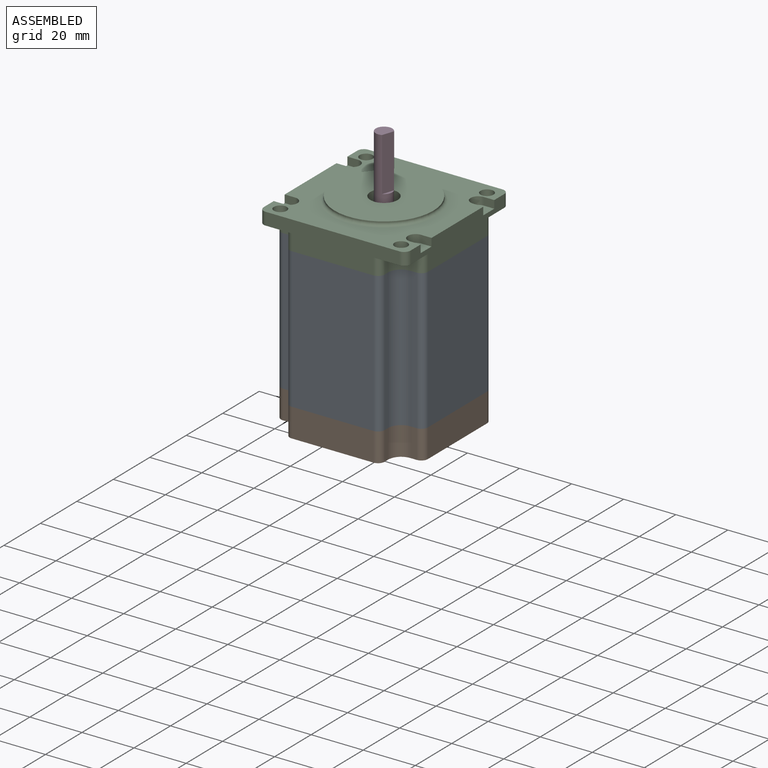
[diagram: assembled view]
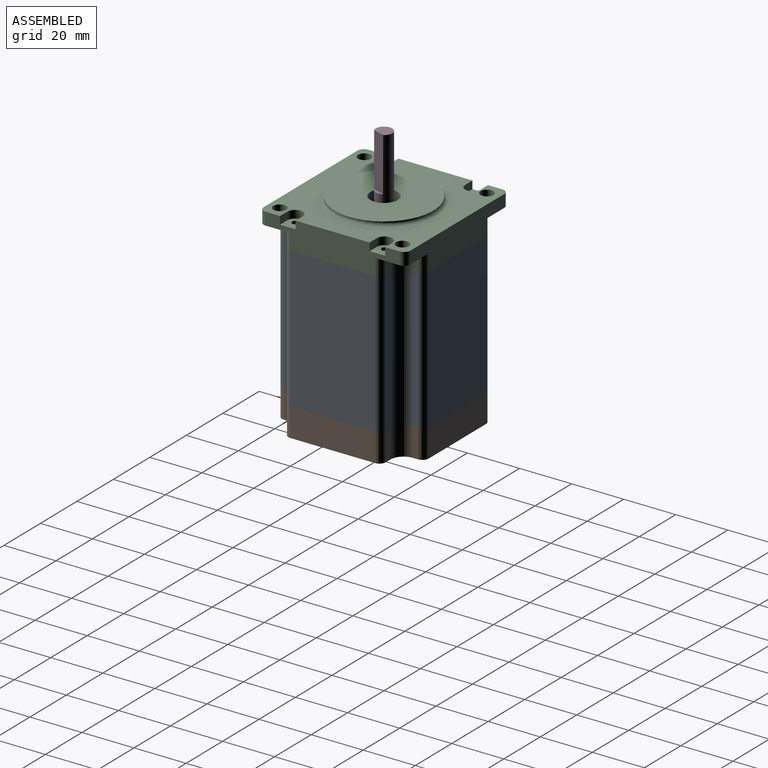
[diagram: assembled view, second angle]
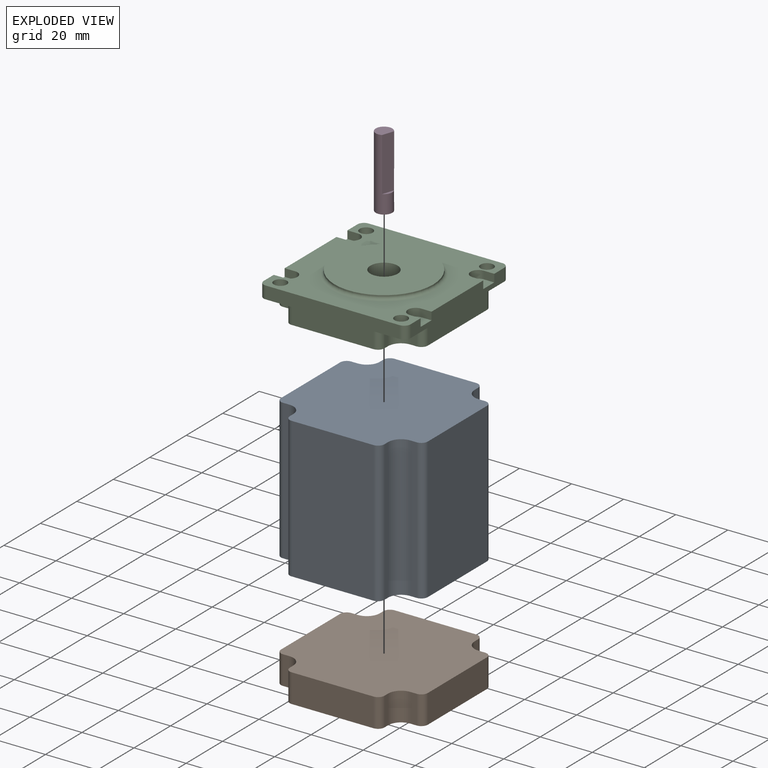
[diagram: exploded view]
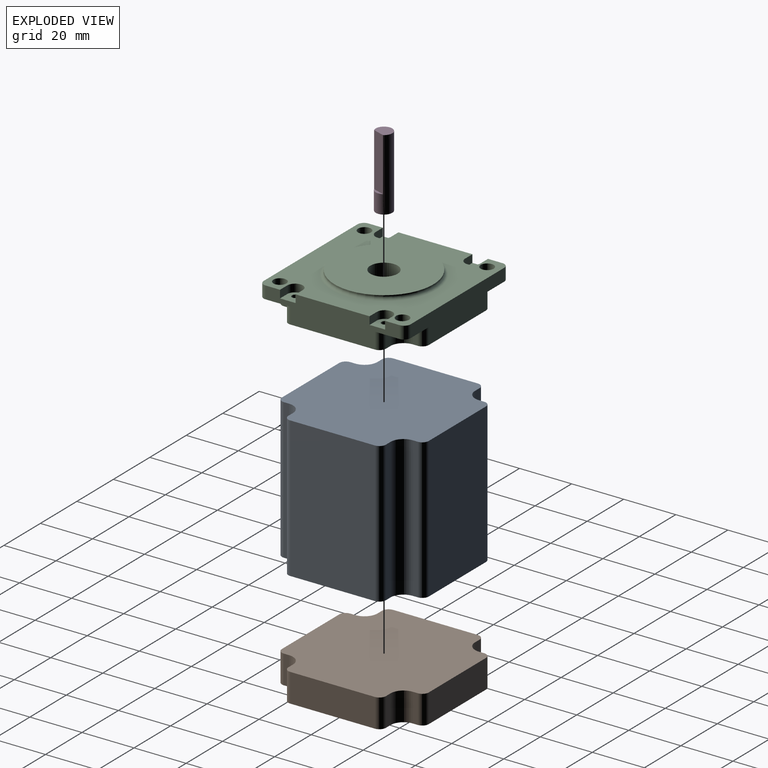
[diagram: exploded view, second angle]
ASSEMBLY  parts=4 mates=3
PART A: 26 faces, bbox 56.4x56.4x54 mm
  f0: plane 56.4x56.4mm, normal (0,0,1), area 2813mm2, adj f1,f2,f3,f4,f5,f6,f7,f8
  f1: cylinder r=2.5mm len=54mm, axis (0,0,-1), area 212.1mm2, adj f0,f2,f22,f24
  f2: plane 54x1.97mm, normal (1,0,0), area 106.2mm2, adj f0,f1,f3,f22
  f3: cylinder r=5mm len=54mm, axis (0,0,-1), area 424.1mm2, adj f0,f2,f4,f22
  f4: plane 54x2.5mm, normal (0,-1,0), area 135mm2, adj f0,f3,f5,f22
  f5: cylinder r=2.5mm len=54mm, axis (0,0,-1), area 212.1mm2, adj f0,f4,f6,f22
  f6: plane 54x32.47mm, normal (1,0,0), area 1753.1mm2, adj f0,f5,f7,f22
  f7: cylinder r=2.5mm len=54mm, axis (0,0,-1), area 212.1mm2, adj f0,f6,f8,f22
  f8: plane 54x2.5mm, normal (0,1,0), area 135mm2, adj f0,f7,f9,f22
  f9: cylinder r=5mm len=54mm, axis (0,0,-1), area 424.1mm2, adj f0,f8,f10,f22
  f10: plane 54x1.97mm, normal (1,0,0), area 106.2mm2, adj f0,f9,f11,f22
  f11: cylinder r=2.5mm len=54mm, axis (0,0,-1), area 212.1mm2, adj f0,f10,f12,f22
  f12: plane 54x31.4mm, normal (0,1,0), area 1695.6mm2, adj f0,f11,f13,f22
  f13: cylinder r=2.5mm len=54mm, axis (0,0,-1), area 212.1mm2, adj f0,f12,f14,f22
  f14: plane 54x1.97mm, normal (-1,0,0), area 106.2mm2, adj f0,f13,f15,f22
  f15: cylinder r=5mm len=54mm, axis (0,0,-1), area 424.1mm2, adj f0,f14,f16,f22
  f16: plane 54x2.5mm, normal (0,1,0), area 135mm2, adj f0,f15,f17,f22
  f17: cylinder r=2.5mm len=54mm, axis (0,0,-1), area 212.1mm2, adj f0,f16,f18,f22
  f18: plane 54x32.47mm, normal (-1,0,0), area 1753.1mm2, adj f0,f17,f19,f22
  f19: cylinder r=2.5mm len=54mm, axis (0,0,-1), area 212.1mm2, adj f0,f18,f20,f22
  f20: plane 54x2.5mm, normal (0,-1,0), area 135mm2, adj f0,f19,f21,f22
  f21: cylinder r=5mm len=54mm, axis (0,0,-1), area 424.1mm2, adj f0,f20,f22,f23
  f22: plane 56.4x56.4mm, normal (0,0,-1), area 2813mm2, adj f1,f2,f3,f4,f5,f6,f7,f8
  f23: plane 54x1.97mm, normal (-1,0,0), area 106.2mm2, adj f0,f21,f22,f25
  f24: plane 54x31.4mm, normal (0,-1,0), area 1695.6mm2, adj f0,f1,f22,f25
  f25: cylinder r=2.5mm len=54mm, axis (0,0,-1), area 212.1mm2, adj f0,f22,f23,f24
PART B: 26 faces, bbox 56.4x56.4x11 mm
  f0: plane 31.4x11mm, normal (0,-1,0), area 345.4mm2, adj f1,f23,f24,f25
  f1: cylinder r=2.5mm len=11mm, axis (0,0,-1), area 43.2mm2, adj f0,f2,f24,f25
  f2: plane 11x1.97mm, normal (1,0,0), area 21.6mm2, adj f1,f3,f24,f25
  f3: cylinder r=5mm len=11mm, axis (0,0,-1), area 86.4mm2, adj f2,f4,f24,f25
  f4: plane 11x2.5mm, normal (0,-1,0), area 27.5mm2, adj f3,f5,f24,f25
  f5: cylinder r=2.5mm len=11mm, axis (0,0,-1), area 43.2mm2, adj f4,f6,f24,f25
  f6: plane 32.47x11mm, normal (1,0,0), area 357.1mm2, adj f5,f7,f24,f25
  f7: cylinder r=2.5mm len=11mm, axis (0,0,-1), area 43.2mm2, adj f6,f8,f24,f25
  f8: plane 11x2.5mm, normal (0,1,0), area 27.5mm2, adj f7,f9,f24,f25
  f9: cylinder r=5mm len=11mm, axis (0,0,-1), area 86.4mm2, adj f8,f10,f24,f25
  f10: plane 11x1.97mm, normal (1,0,0), area 21.6mm2, adj f9,f11,f24,f25
  f11: cylinder r=2.5mm len=11mm, axis (0,0,-1), area 43.2mm2, adj f10,f12,f24,f25
  f12: plane 31.4x11mm, normal (0,1,0), area 345.4mm2, adj f11,f13,f24,f25
  f13: cylinder r=2.5mm len=11mm, axis (0,0,-1), area 43.2mm2, adj f12,f14,f24,f25
  f14: plane 11x1.97mm, normal (-1,0,0), area 21.6mm2, adj f13,f15,f24,f25
  f15: cylinder r=5mm len=11mm, axis (0,0,-1), area 86.4mm2, adj f14,f16,f24,f25
  f16: plane 11x2.5mm, normal (0,1,0), area 27.5mm2, adj f15,f17,f24,f25
  f17: cylinder r=2.5mm len=11mm, axis (0,0,-1), area 43.2mm2, adj f16,f18,f24,f25
  f18: plane 32.47x11mm, normal (-1,0,0), area 357.1mm2, adj f17,f19,f24,f25
  f19: cylinder r=2.5mm len=11mm, axis (0,0,-1), area 43.2mm2, adj f18,f20,f24,f25
  f20: plane 11x2.5mm, normal (0,-1,0), area 27.5mm2, adj f19,f21,f24,f25
  f21: cylinder r=5mm len=11mm, axis (0,0,-1), area 86.4mm2, adj f20,f22,f24,f25
  f22: plane 11x1.97mm, normal (-1,0,0), area 21.6mm2, adj f21,f23,f24,f25
  f23: cylinder r=2.5mm len=11mm, axis (0,0,-1), area 43.2mm2, adj f0,f22,f24,f25
  f24: plane 56.4x56.4mm, normal (0,0,1), area 2813mm2, adj f0,f1,f2,f3,f4,f5,f6,f7
  f25: plane 56.4x56.4mm, normal (0,0,-1), area 2813mm2, adj f0,f1,f2,f3,f4,f5,f6,f7
PART C: 67 faces, bbox 56.4x56.4x12.6 mm
  f0: plane 51.4x11mm, normal (1,0,0), area 412mm2, adj f1,f2,f5,f6,f12,f31,f32,f37
  f1: plane 12.5x11.97mm, normal (0,0,-1), area 71mm2, adj f0,f11,f12,f14,f32,f33,f34,f35
  f2: plane 12.5x11.97mm, normal (0,0,-1), area 71mm2, adj f0,f6,f7,f15,f27,f28,f29,f30
  f3: plane 12.5x11.97mm, normal (0,0,-1), area 71mm2, adj f7,f8,f9,f13,f22,f23,f24,f25
  f4: plane 12.5x11.97mm, normal (0,0,-1), area 71mm2, adj f9,f10,f11,f16,f17,f18,f19,f20
  f5: plane 56.4x56.4mm, normal (0,0,1), area 1662.6mm2, adj f0,f6,f7,f8,f9,f10,f11,f12
  f6: cylinder r=2.5mm len=4.8mm, axis (0,0,1), area 18.8mm2, adj f0,f2,f5,f7
  f7: plane 51.4x11mm, normal (0,1,0), area 441.4mm2, adj f2,f3,f5,f6,f8,f26,f27,f37
  f8: cylinder r=2.5mm len=4.8mm, axis (0,0,1), area 18.8mm2, adj f3,f5,f7,f9
  f9: plane 51.4x11mm, normal (-1,0,0), area 412mm2, adj f3,f4,f5,f8,f10,f21,f22,f37
  f10: cylinder r=2.5mm len=4.8mm, axis (0,0,1), area 18.8mm2, adj f4,f5,f9,f11
  f11: plane 51.4x11mm, normal (0,-1,0), area 441.4mm2, adj f1,f4,f5,f10,f12,f17,f36,f37
  f12: cylinder r=2.5mm len=4.8mm, axis (0,0,1), area 18.8mm2, adj f0,f1,f5,f11
  f13: cylinder r=2.5mm len=5mm, axis (0,0,1), area 75.4mm2, adj f3,f5
  f14: cylinder r=2.5mm len=5mm, axis (0,0,1), area 75.4mm2, adj f1,f5
  f15: cylinder r=2.5mm len=5mm, axis (0,0,1), area 75.4mm2, adj f2,f5
  f16: cylinder r=2.5mm len=5mm, axis (0,0,1), area 75.4mm2, adj f4,f5
  f17: cylinder r=2.5mm len=6.2mm, axis (0,0,1), area 24.3mm2, adj f4,f11,f18,f37
  f18: plane 6.2x1.97mm, normal (-1,0,0), area 12.2mm2, adj f4,f17,f19,f37
  f19: cylinder r=5mm len=6.2mm, axis (0,0,1), area 48.7mm2, adj f4,f18,f20,f37
  f20: plane 6.2x2.5mm, normal (0,-1,0), area 15.5mm2, adj f4,f19,f21,f37
  f21: cylinder r=2.5mm len=6.2mm, axis (0,0,1), area 24.3mm2, adj f4,f9,f20,f37
  f22: cylinder r=2.5mm len=6.2mm, axis (0,0,1), area 24.3mm2, adj f3,f9,f23,f37
  f23: plane 6.2x2.5mm, normal (0,1,0), area 15.5mm2, adj f3,f22,f24,f37
  f24: cylinder r=5mm len=6.2mm, axis (0,0,1), area 48.7mm2, adj f3,f23,f25,f37
  f25: plane 6.2x1.97mm, normal (-1,0,0), area 12.2mm2, adj f3,f24,f26,f37
  f26: cylinder r=2.5mm len=6.2mm, axis (0,0,1), area 24.3mm2, adj f3,f7,f25,f37
  f27: cylinder r=2.5mm len=6.2mm, axis (0,0,1), area 24.3mm2, adj f2,f7,f28,f37
  f28: plane 6.2x1.97mm, normal (1,0,0), area 12.2mm2, adj f2,f27,f29,f37
  f29: cylinder r=5mm len=6.2mm, axis (0,0,1), area 48.7mm2, adj f2,f28,f30,f37
  f30: plane 6.2x2.5mm, normal (0,1,0), area 15.5mm2, adj f2,f29,f31,f37
  f31: cylinder r=2.5mm len=6.2mm, axis (0,0,1), area 24.3mm2, adj f0,f2,f30,f37
  f32: cylinder r=2.5mm len=6.2mm, axis (0,0,1), area 24.3mm2, adj f0,f1,f33,f37
  f33: plane 6.2x2.5mm, normal (0,-1,0), area 15.5mm2, adj f1,f32,f34,f37
  f34: cylinder r=5mm len=6.2mm, axis (0,0,1), area 48.7mm2, adj f1,f33,f35,f37
  f35: plane 6.2x1.97mm, normal (1,0,0), area 12.2mm2, adj f1,f34,f36,f37
  f36: cylinder r=2.5mm len=6.2mm, axis (0,0,1), area 24.3mm2, adj f1,f11,f35,f37
  f37: plane 56.4x56.4mm, normal (0,0,-1), area 2813mm2, adj f0,f7,f9,f11,f17,f18,f19,f20
  f38: cylinder r=3mm len=6mm, axis (0,0,1), area 28.3mm2, adj f5,f39,f40,f41
  f39: plane 4x3mm, normal (0,-1,0), area 12mm2, adj f5,f9,f38,f41
  f40: plane 4x3mm, normal (0,1,0), area 12mm2, adj f5,f9,f38,f41
  f41: plane 7x6mm, normal (0,0,1), area 33.2mm2, adj f9,f38,f39,f40,f42
  f42: cylinder r=1.25mm len=3mm, axis (0,0,1), area 23.6mm2, adj f41,f43
  f43: plane 2.5x2.5mm, normal (0,0,1), area 4.9mm2, adj f42
  f44: cylinder r=3mm len=6mm, axis (0,0,1), area 28.3mm2, adj f5,f45,f46,f47
  f45: plane 4x3mm, normal (0,-1,0), area 12mm2, adj f5,f9,f44,f47
  f46: plane 4x3mm, normal (0,1,0), area 12mm2, adj f5,f9,f44,f47
  f47: plane 7x6mm, normal (0,0,1), area 33.2mm2, adj f9,f44,f45,f46,f48
  f48: cylinder r=1.25mm len=3mm, axis (0,0,1), area 23.6mm2, adj f47,f49
  f49: plane 2.5x2.5mm, normal (0,0,1), area 4.9mm2, adj f48
  f50: cylinder r=3mm len=6mm, axis (0,0,1), area 28.3mm2, adj f5,f51,f52,f53
  f51: plane 4x3mm, normal (0,1,0), area 12mm2, adj f0,f5,f50,f53
  f52: plane 4x3mm, normal (0,-1,0), area 12mm2, adj f0,f5,f50,f53
  f53: plane 7x6mm, normal (0,0,1), area 33.2mm2, adj f0,f50,f51,f52,f54
  f54: cylinder r=1.25mm len=3mm, axis (0,0,1), area 23.6mm2, adj f53,f55
  f55: plane 2.5x2.5mm, normal (0,0,1), area 4.9mm2, adj f54
  f56: cylinder r=3mm len=6mm, axis (0,0,1), area 28.3mm2, adj f5,f57,f58,f59
  f57: plane 4x3mm, normal (0,1,0), area 12mm2, adj f0,f5,f56,f59
  f58: plane 4x3mm, normal (0,-1,0), area 12mm2, adj f0,f5,f56,f59
  f59: plane 7x6mm, normal (0,0,1), area 33.2mm2, adj f0,f56,f57,f58,f60
  f60: cylinder r=1.25mm len=3mm, axis (0,0,1), area 23.6mm2, adj f59,f61
  f61: plane 2.5x2.5mm, normal (0,0,1), area 4.9mm2, adj f60
  f62: cylinder r=19mm len=38mm, axis (0,0,-1), area 47.8mm2, adj f63,f64
  f63: plane 38x38mm, normal (0,0,1), area 1047.5mm2, adj f62,f65
  f64: torus R=20.2mm, axis (0,0,1), area 230.2mm2, adj f5,f62
  f65: cylinder r=5.25mm len=10.5mm, axis (0,0,1), area 164.9mm2, adj f63,f66
  f66: plane 10.5x10.5mm, normal (0,0,1), area 86.6mm2, adj f65
PART D: 5 faces, bbox 6.4x6.4x27.6 mm
  f0: cylinder r=3.17mm len=27.6mm, axis (0,0,-1), area 442.5mm2, adj f1,f2,f3,f4
  f1: plane 6.35x5.32mm, normal (0,0,1), area 28.3mm2, adj f0,f4
  f2: plane 6.35x6.35mm, normal (0,0,-1), area 31.7mm2, adj f0
  f3: plane 4.69x1.03mm, normal (0,0,1), area 3.4mm2, adj f0,f4
  f4: plane 20.5x4.69mm, normal (1,0,0), area 96.1mm2, adj f0,f1,f3
PLACE A at identity
PLACE B at identity fixed
PLACE C at identity
PLACE D rot(axis=(0,0,-1),18.4deg) t=(0,0,0)mm
MATE fastened A.f22 <-> B.f24  axis (0,0,1) through (15.7,-28.2,-65)mm
MATE revolute D.f0 <-> C.f65  axis (0,0,-1) through (0,0,-3.4)mm
MATE fastened C.f37 <-> A.f0  axis (0,0,1) through (15.7,-28.2,-11)mm
